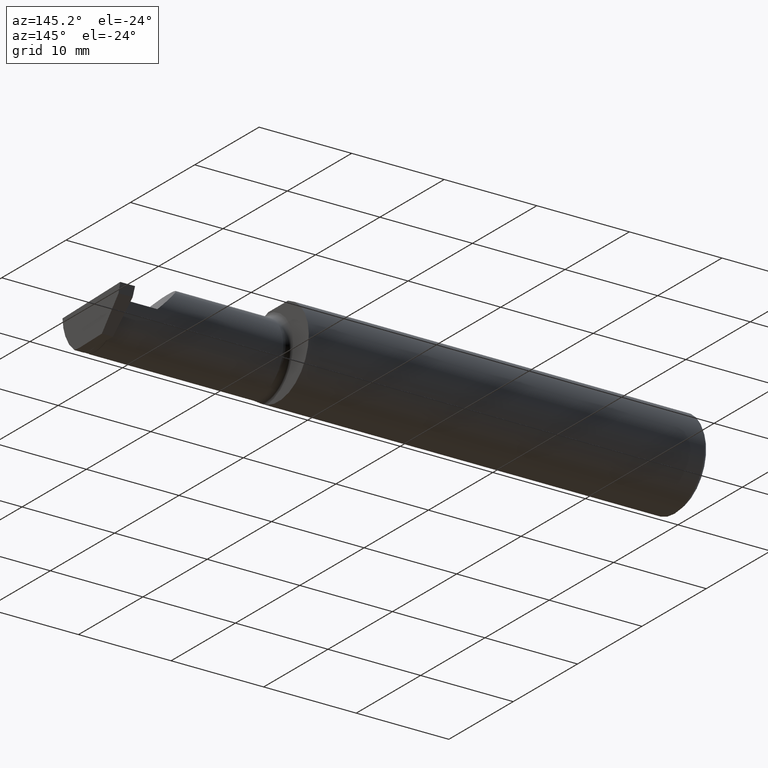
[diagram: clean part render]
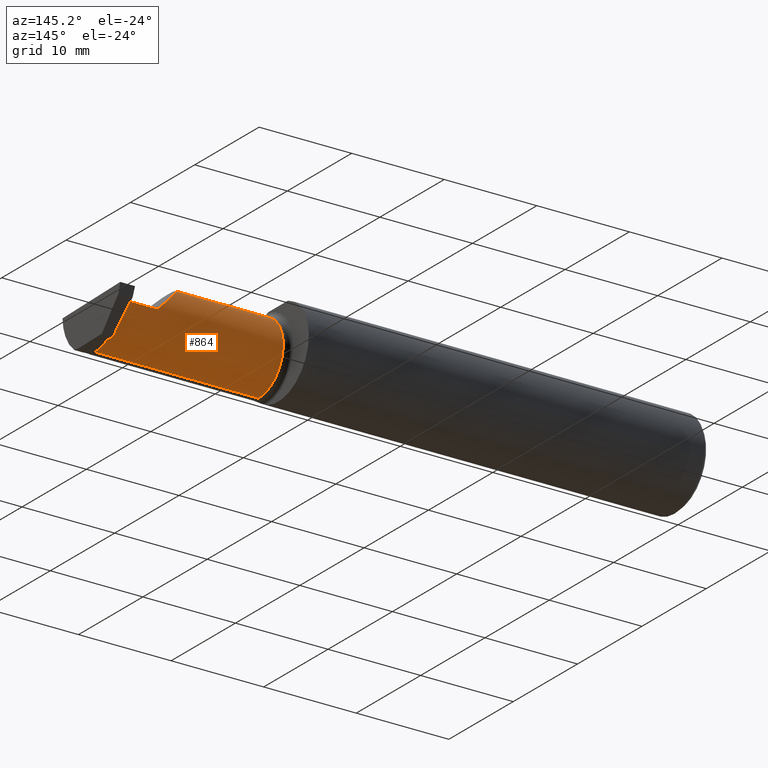
[diagram: same view with one face highlighted and labeled with its STEP entity id]
A machine part, auxiliary view. The second image highlights one B-rep face of the part: STEP entity #864.
In plain terms, the highlighted cylindrical surface (partial cylindrical patch) has radius 3.81 mm, axis along (-1, -0, -0).
Its self-contained STEP definition (entity closure, byte-faithful):
#16 = CARTESIAN_POINT ( 'NONE',  ( 2.420601194472301820, -0.04414772474447203887, -0.1461247700062918153 ) ) ;
#28 = CARTESIAN_POINT ( 'NONE',  ( 2.260000000000000231, 0.06665000000000002867, 2.987958743070287587E-17 ) ) ;
#47 = ORIENTED_EDGE ( 'NONE', *, *, #244, .T. ) ;
#60 = CARTESIAN_POINT ( 'NONE',  ( 2.260000000000000231, 0.06665000000000002867, 2.987958743070287587E-17 ) ) ;
#79 = DIRECTION ( 'NONE',  ( -1.000000000000000000, -0.000000000000000000, -0.000000000000000000 ) ) ;
#90 = CARTESIAN_POINT ( 'NONE',  ( 2.417584115952524648, 0.05145648350381303721, -0.06650224100886607814 ) ) ;
#102 = ORIENTED_EDGE ( 'NONE', *, *, #811, .T. ) ;
#127 = ORIENTED_EDGE ( 'NONE', *, *, #659, .T. ) ;
#133 = DIRECTION ( 'NONE',  ( -1.000000000000000000, -0.000000000000000000, -0.000000000000000000 ) ) ;
#156 = AXIS2_PLACEMENT_3D ( 'NONE', #195, #133, #518 ) ;
#179 = CARTESIAN_POINT ( 'NONE',  ( 2.420802669072606772, -0.08335000000000176990, -0.1499999999999999389 ) ) ;
#185 = B_SPLINE_CURVE_WITH_KNOTS ( 'NONE', 3,
 ( #875, #265, #339, #90, #190, #584, #495, #805, #899, #809, #333, #16, #406, #179 ),
 .UNSPECIFIED., .F., .F.,
 ( 4, 2, 2, 2, 2, 2, 4 ),
 ( 0.000000000000000000, 0.001502809041486050622, 0.002254213562229075932, 0.003005618082972101243, 0.003757022603715126554, 0.004508427124458151865, 0.006011236165944202486 ),
 .UNSPECIFIED. ) ;
#190 = CARTESIAN_POINT ( 'NONE',  ( 2.417917589723255212, 0.04676325656223011967, -0.07527902610844632025 ) ) ;
#195 = CARTESIAN_POINT ( 'NONE',  ( 1.699999999999999956, -0.08334999999999996578, 0.000000000000000000 ) ) ;
#197 = VERTEX_POINT ( 'NONE', #876 ) ;
#216 = DIRECTION ( 'NONE',  ( 1.000000000000000000, 0.000000000000000000, 0.000000000000000000 ) ) ;
#217 = CARTESIAN_POINT ( 'NONE',  ( 2.172132034355964691, 0.06665000000000001479, 0.08786796564403576149 ) ) ;
#226 = EDGE_CURVE ( 'NONE', #621, #840, #383, .T. ) ;
#244 = EDGE_CURVE ( 'NONE', #777, #840, #480, .T. ) ;
#265 = CARTESIAN_POINT ( 'NONE',  ( 2.415759755271787323, 0.06664999999591597613, -0.01979751736062848946 ) ) ;
#276 = CARTESIAN_POINT ( 'NONE',  ( 1.724999999999999867, -0.08334999999999995191, -0.1499999999999999944 ) ) ;
#315 = DIRECTION ( 'NONE',  ( -1.000000000000000000, -0.000000000000000000, -0.000000000000000000 ) ) ;
#333 = CARTESIAN_POINT ( 'NONE',  ( 2.420195206333485949, -0.01680787643113945337, -0.1347941485732855327 ) ) ;
#339 = CARTESIAN_POINT ( 'NONE',  ( 2.416485557519904681, 0.06268191249667449949, -0.03944647953904122095 ) ) ;
#363 = EDGE_LOOP ( 'NONE', ( #127, #47, #477, #455, #462, #102 ) ) ;
#365 = CARTESIAN_POINT ( 'NONE',  ( 1.699999999999999956, -0.08334999999999996578, 0.1499999999999999944 ) ) ;
#375 =( BOUNDED_CURVE ( )  B_SPLINE_CURVE ( 3, ( #695, #924, #217, #60 ),
 .UNSPECIFIED., .F., .T. ) 
 B_SPLINE_CURVE_WITH_KNOTS ( ( 4, 4 ),
 ( 0.000000000000000000, 1.570796326794896558 ),
 .UNSPECIFIED. ) 
 CURVE ( )  GEOMETRIC_REPRESENTATION_ITEM ( )  RATIONAL_B_SPLINE_CURVE ( ( 1.000000000000000000, 0.8047378541243649375, 0.8047378541243649375, 1.000000000000000000 ) ) 
 REPRESENTATION_ITEM ( '' )  );
#383 = CIRCLE ( 'NONE', #1033, 0.1499999999999999944 ) ;
#390 = CARTESIAN_POINT ( 'NONE',  ( 1.724999999999999867, -0.08334999999999996578, 0.000000000000000000 ) ) ;
#406 = CARTESIAN_POINT ( 'NONE',  ( 2.420823134229770357, -0.06360486374412598065, -0.1500000000000002442 ) ) ;
#410 = VERTEX_POINT ( 'NONE', #1006 ) ;
#423 = CARTESIAN_POINT ( 'NONE',  ( 2.420802669072606772, -0.08335000000000176990, -0.1499999999999999389 ) ) ;
#455 = ORIENTED_EDGE ( 'NONE', *, *, #519, .F. ) ;
#462 = ORIENTED_EDGE ( 'NONE', *, *, #489, .T. ) ;
#477 = ORIENTED_EDGE ( 'NONE', *, *, #226, .F. ) ;
#480 = LINE ( 'NONE', #796, #553 ) ;
#489 = EDGE_CURVE ( 'NONE', #197, #669, #375, .T. ) ;
#495 = CARTESIAN_POINT ( 'NONE',  ( 2.418778796847657286, 0.02964324880582033458, -0.09913906102354901051 ) ) ;
#514 = LINE ( 'NONE', #755, #604 ) ;
#518 = DIRECTION ( 'NONE',  ( 0.000000000000000000, 0.000000000000000000, 1.000000000000000000 ) ) ;
#519 = EDGE_CURVE ( 'NONE', #197, #621, #525, .T. ) ;
#525 = LINE ( 'NONE', #365, #958 ) ;
#529 = FACE_OUTER_BOUND ( 'NONE', #363, .T. ) ;
#553 = VECTOR ( 'NONE', #79, 39.37007874015748143 ) ;
#584 = CARTESIAN_POINT ( 'NONE',  ( 2.418501686259209915, 0.03584079016566094761, -0.09159665302155009514 ) ) ;
#604 = VECTOR ( 'NONE', #216, 39.37007874015748143 ) ;
#621 = VERTEX_POINT ( 'NONE', #625 ) ;
#625 = CARTESIAN_POINT ( 'NONE',  ( 1.724999999999999867, -0.08334999999999996578, 0.1499999999999999944 ) ) ;
#637 = DIRECTION ( 'NONE',  ( -1.000000000000000000, -0.000000000000000000, -0.000000000000000000 ) ) ;
#659 = EDGE_CURVE ( 'NONE', #410, #777, #185, .T. ) ;
#669 = VERTEX_POINT ( 'NONE', #28 ) ;
#695 = CARTESIAN_POINT ( 'NONE',  ( 2.110000000000001208, -0.08334999999999996578, 0.1499999999999999944 ) ) ;
#711 = DIRECTION ( 'NONE',  ( 0.000000000000000000, 0.000000000000000000, 1.000000000000000000 ) ) ;
#755 = CARTESIAN_POINT ( 'NONE',  ( 1.699999999999999956, 0.06665000000000002867, 9.817578727230945633E-17 ) ) ;
#777 = VERTEX_POINT ( 'NONE', #423 ) ;
#796 = CARTESIAN_POINT ( 'NONE',  ( 1.699999999999999956, -0.08334999999999995191, -0.1499999999999999944 ) ) ;
#805 = CARTESIAN_POINT ( 'NONE',  ( 2.419340708857770750, 0.01578456816674046054, -0.1129971906319749142 ) ) ;
#809 = CARTESIAN_POINT ( 'NONE',  ( 2.420047394350710590, -0.008191921905021130532, -0.1301800509972567133 ) ) ;
#811 = EDGE_CURVE ( 'NONE', #669, #410, #514, .T. ) ;
#840 = VERTEX_POINT ( 'NONE', #276 ) ;
#864 = ADVANCED_FACE ( 'NONE', ( #529 ), #914, .T. ) ;
#875 = CARTESIAN_POINT ( 'NONE',  ( 2.415000000000238956, 0.06664999999976051193, 8.537024980200822558E-18 ) ) ;
#876 = CARTESIAN_POINT ( 'NONE',  ( 2.110000000000001208, -0.08334999999999996578, 0.1499999999999999944 ) ) ;
#899 = CARTESIAN_POINT ( 'NONE',  ( 2.419625853368147617, 0.008070055702243027207, -0.1193229055796835997 ) ) ;
#914 = CYLINDRICAL_SURFACE ( 'NONE', #156, 0.1499999999999999944 ) ;
#924 = CARTESIAN_POINT ( 'NONE',  ( 2.110000000000001208, 0.004517965644035767080, 0.1500000000000000222 ) ) ;
#958 = VECTOR ( 'NONE', #637, 39.37007874015748143 ) ;
#1006 = CARTESIAN_POINT ( 'NONE',  ( 2.415000000000238956, 0.06664999999976051193, 8.537024980200822558E-18 ) ) ;
#1033 = AXIS2_PLACEMENT_3D ( 'NONE', #390, #315, #711 ) ;